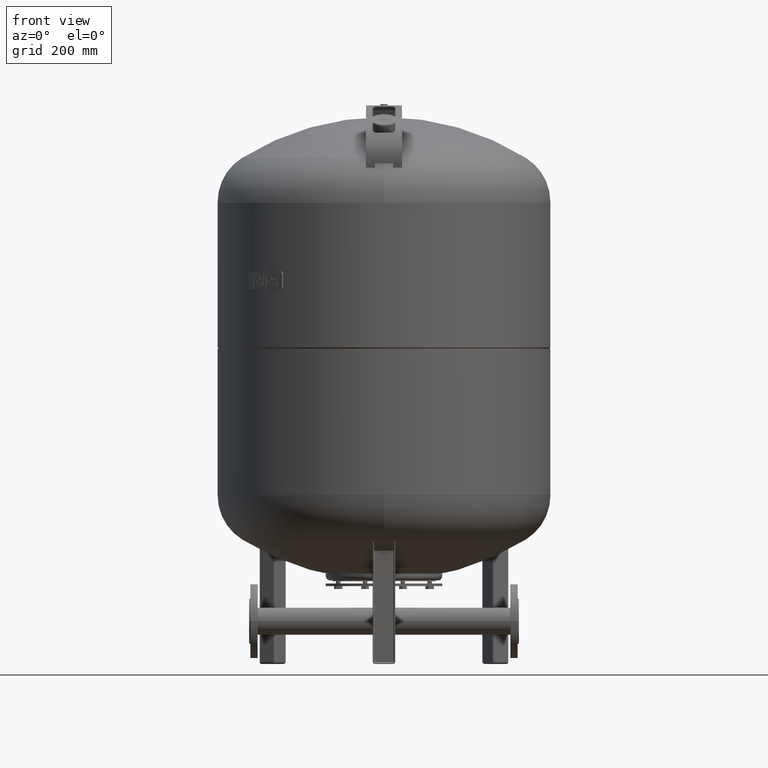
[diagram: clean part render]
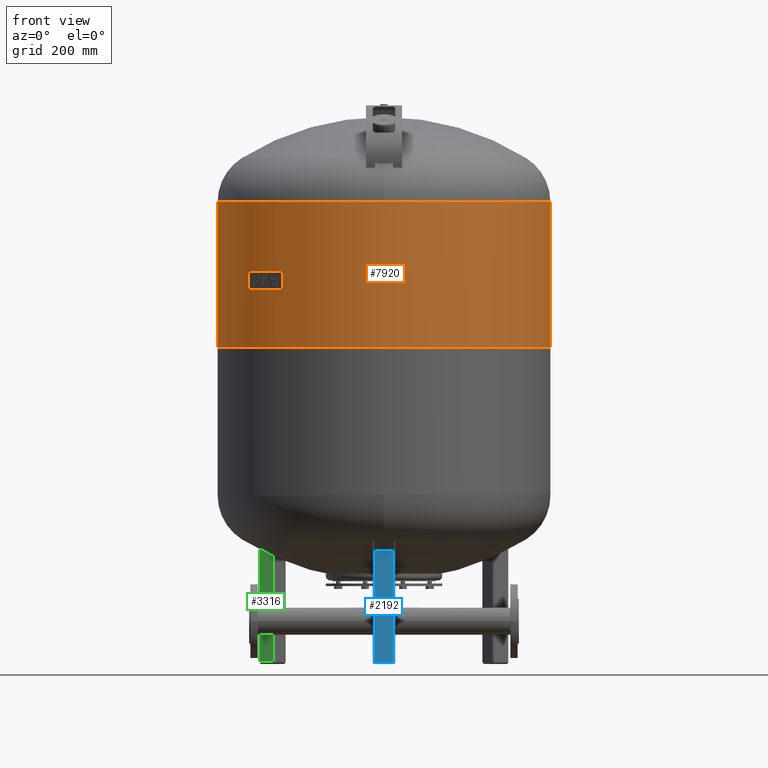
[diagram: same view with three faces highlighted in distinct colors, each labeled with its STEP entity id]
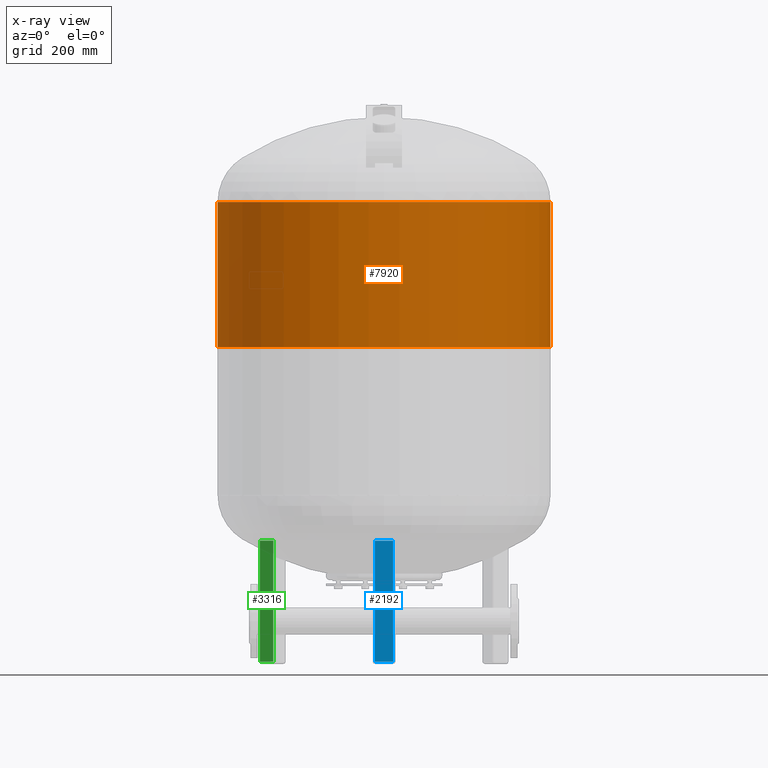
[diagram: x-ray of the same camera — body ghosted, the three highlighted faces saturated]
A machine part, front view with three faces highlighted in distinct colors.
The next image is the same camera in x-ray (body ghosted, the three faces saturated) — at least one of them is partly hidden behind the body in this view.
Their STEP definitions:

[orange] entity #7920 — the highlighted cylindrical surface (partial cylindrical patch) has radius 370 mm, axis along (0, 0, 1).
#7810=CARTESIAN_POINT('',(369.999999999999770,0.0,704.0));
#7811=VERTEX_POINT('',#7810);
#7820=CARTESIAN_POINT('',(-370.0,-4.531044E-014,704.0));
#7821=VERTEX_POINT('',#7820);
#7822=CARTESIAN_POINT('',(1.535702E-016,0.0,704.0));
#7823=DIRECTION('',(0.0,0.0,1.0));
#7824=DIRECTION('',(1.0,0.0,0.0));
#7825=AXIS2_PLACEMENT_3D('',#7822,#7823,#7824);
#7826=CIRCLE('',#7825,369.999999999999770);
#7827=EDGE_CURVE('',#7821,#7811,#7826,.T.);
#7889=CARTESIAN_POINT('',(1.668796E-014,0.0,1029.500000000000000));
#7890=DIRECTION('',(0.0,0.0,1.0));
#7891=DIRECTION('',(1.0,0.0,0.0));
#7892=AXIS2_PLACEMENT_3D('',#7889,#7890,#7891);
#7893=CYLINDRICAL_SURFACE('',#7892,370.0);
#7894=CARTESIAN_POINT('',(370.0,0.0,1027.0));
#7895=VERTEX_POINT('',#7894);
#7896=CARTESIAN_POINT('',(370.0,0.0,1027.0));
#7897=DIRECTION('',(0.0,0.0,-1.0));
#7898=VECTOR('',#7897,323.0);
#7899=LINE('',#7896,#7898);
#7900=EDGE_CURVE('',#7895,#7811,#7899,.T.);
#7901=ORIENTED_EDGE('',*,*,#7900,.F.);
#7902=CARTESIAN_POINT('',(-370.0,-4.531044E-014,1027.0));
#7903=VERTEX_POINT('',#7902);
#7904=CARTESIAN_POINT('',(1.668796E-014,0.0,1027.0));
#7905=DIRECTION('',(0.0,0.0,1.0));
#7906=DIRECTION('',(1.0,0.0,0.0));
#7907=AXIS2_PLACEMENT_3D('',#7904,#7905,#7906);
#7908=CIRCLE('',#7907,370.0);
#7909=EDGE_CURVE('',#7903,#7895,#7908,.T.);
#7910=ORIENTED_EDGE('',*,*,#7909,.F.);
#7911=CARTESIAN_POINT('',(-370.0,-4.531044E-014,1027.0));
#7912=DIRECTION('',(0.0,0.0,-1.0));
#7913=VECTOR('',#7912,323.0);
#7914=LINE('',#7911,#7913);
#7915=EDGE_CURVE('',#7903,#7821,#7914,.T.);
#7916=ORIENTED_EDGE('',*,*,#7915,.T.);
#7917=ORIENTED_EDGE('',*,*,#7827,.T.);
#7918=EDGE_LOOP('',(#7901,#7910,#7916,#7917));
#7919=FACE_OUTER_BOUND('',#7918,.T.);
#7920=ADVANCED_FACE('',(#7919),#7893,.T.);

[blue] entity #2192 — the highlighted planar face has unit normal (0, 1, 0).
#1281=CARTESIAN_POINT('',(-19.999999999999996,-267.500000000000000,274.0));
#1282=VERTEX_POINT('',#1281);
#1290=CARTESIAN_POINT('',(20.000000000000004,-267.500000000000000,274.0));
#1291=VERTEX_POINT('',#1290);
#1292=CARTESIAN_POINT('',(20.000000000000004,-267.500000000000000,274.0));
#1293=DIRECTION('',(-1.0,0.0,0.0));
#1294=VECTOR('',#1293,40.0);
#1295=LINE('',#1292,#1294);
#1296=EDGE_CURVE('',#1291,#1282,#1295,.T.);
#1833=CARTESIAN_POINT('',(20.0,-267.500000000000000,4.500000000000004));
#1834=VERTEX_POINT('',#1833);
#1842=CARTESIAN_POINT('',(-20.0,-267.500000000000000,4.499999999999996));
#1843=VERTEX_POINT('',#1842);
#1844=CARTESIAN_POINT('',(20.0,-267.500000000000000,4.500000000000004));
#1845=DIRECTION('',(-1.0,0.0,0.0));
#1846=VECTOR('',#1845,40.0);
#1847=LINE('',#1844,#1846);
#1848=EDGE_CURVE('',#1834,#1843,#1847,.T.);
#2165=CARTESIAN_POINT('',(-20.0,-267.500000000000000,4.499999999999996));
#2166=DIRECTION('',(0.0,0.0,1.0));
#2167=VECTOR('',#2166,269.500000000000000);
#2168=LINE('',#2165,#2167);
#2169=EDGE_CURVE('',#1843,#1282,#2168,.T.);
#2176=CARTESIAN_POINT('',(-22.500000000000000,-267.500000000000000,1.999999999999996));
#2177=DIRECTION('',(0.0,1.0,0.0));
#2178=DIRECTION('',(-1.0,0.0,0.0));
#2179=AXIS2_PLACEMENT_3D('',#2176,#2177,#2178);
#2180=PLANE('',#2179);
#2181=ORIENTED_EDGE('',*,*,#1848,.F.);
#2182=CARTESIAN_POINT('',(20.000000000000004,-267.500000000000000,274.0));
#2183=DIRECTION('',(0.0,0.0,-1.0));
#2184=VECTOR('',#2183,269.500000000000000);
#2185=LINE('',#2182,#2184);
#2186=EDGE_CURVE('',#1291,#1834,#2185,.T.);
#2187=ORIENTED_EDGE('',*,*,#2186,.F.);
#2188=ORIENTED_EDGE('',*,*,#1296,.T.);
#2189=ORIENTED_EDGE('',*,*,#2169,.F.);
#2190=EDGE_LOOP('',(#2181,#2187,#2188,#2189));
#2191=FACE_OUTER_BOUND('',#2190,.T.);
#2192=ADVANCED_FACE('',(#2191),#2180,.F.);

[green] entity #3316 — the highlighted planar face has unit normal (-0.5, -0.866, 0).
#2378=CARTESIAN_POINT('',(-275.771722750469220,130.349364905389170,274.0));
#2379=VERTEX_POINT('',#2378);
#2387=CARTESIAN_POINT('',(-246.326859021798300,113.349364905389180,274.0));
#2388=VERTEX_POINT('',#2387);
#2389=CARTESIAN_POINT('',(-246.326859021798300,113.349364905389180,274.0));
#2390=DIRECTION('',(-0.866025403784439,0.500000000000000,0.0));
#2391=VECTOR('',#2390,34.0);
#2392=LINE('',#2389,#2391);
#2393=EDGE_CURVE('',#2388,#2379,#2392,.T.);
#2823=CARTESIAN_POINT('',(-275.771722750469220,130.349364905389170,5.000000000000004));
#2824=VERTEX_POINT('',#2823);
#2851=CARTESIAN_POINT('',(-275.771722750469220,130.349364905389170,5.000000000000004));
#2852=DIRECTION('',(0.0,0.0,1.0));
#2853=VECTOR('',#2852,269.0);
#2854=LINE('',#2851,#2853);
#2855=EDGE_CURVE('',#2824,#2379,#2854,.T.);
#3051=CARTESIAN_POINT('',(-246.326859021798330,113.349364905389170,5.000000000000004));
#3052=VERTEX_POINT('',#3051);
#3060=CARTESIAN_POINT('',(-246.326859021798330,113.349364905389170,5.000000000000004));
#3061=DIRECTION('',(-0.866025403784438,0.500000000000000,0.0));
#3062=VECTOR('',#3061,33.999999999999986);
#3063=LINE('',#3060,#3062);
#3064=EDGE_CURVE('',#3052,#2824,#3063,.T.);
#3186=CARTESIAN_POINT('',(-246.326859021798330,113.349364905389170,5.000000000000004));
#3187=DIRECTION('',(0.0,0.0,1.0));
#3188=VECTOR('',#3187,269.0);
#3189=LINE('',#3186,#3188);
#3190=EDGE_CURVE('',#3052,#2388,#3189,.T.);
#3305=CARTESIAN_POINT('',(-241.996732002876120,110.849364905389170,4.592425E-015));
#3306=DIRECTION('',(-0.500000000000000,-0.866025403784439,1.836970E-016));
#3307=DIRECTION('',(0.866025403784439,-0.500000000000000,-2.039447E-032));
#3308=AXIS2_PLACEMENT_3D('',#3305,#3306,#3307);
#3309=PLANE('',#3308);
#3310=ORIENTED_EDGE('',*,*,#2855,.F.);
#3311=ORIENTED_EDGE('',*,*,#3064,.F.);
#3312=ORIENTED_EDGE('',*,*,#3190,.T.);
#3313=ORIENTED_EDGE('',*,*,#2393,.T.);
#3314=EDGE_LOOP('',(#3310,#3311,#3312,#3313));
#3315=FACE_OUTER_BOUND('',#3314,.T.);
#3316=ADVANCED_FACE('',(#3315),#3309,.T.);